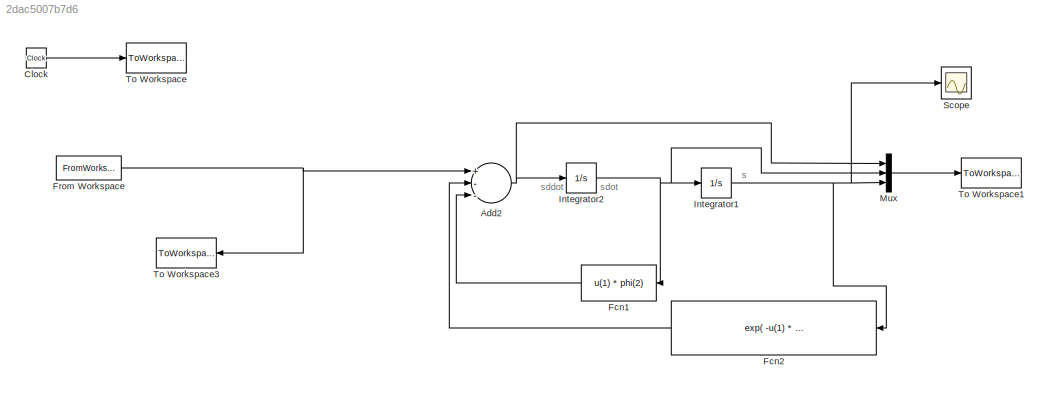
MODEL slx_2dac5007b7d6
KIND model
BLOCK [Sum] Add2
  InputSameDT = off
  Inputs = +--
  OutDataTypeStr = Inherit: Inherit via internal rule
  Ports = [3, 1]
  SaturateOnIntegerOverflow = off
BLOCK [Clock] Clock
BLOCK [Fcn] Fcn1
  Expr = u(1) * phi(2)
BLOCK [Fcn] Fcn2
  Expr = exp( -u(1) * phi(1))
BLOCK [FromWorkspace] From Workspace
  SampleTime = 0
  VariableName = input
  ZeroCross = on
BLOCK [Integrator] Integrator1
  Ports = [1, 1]
BLOCK [Integrator] Integrator2
  Ports = [1, 1]
BLOCK [Mux] Mux
  DisplayOption = bar
  Inputs = 3
  Ports = [3, 1]
BLOCK [Scope] Scope
  DataFormat = StructureWithTime
  Floating = off
  NumInputPorts = 1
  Ports = [1]
  SampleTime = 0
  ShowLegends = off
BLOCK [ToWorkspace] To Workspace
  MaxDataPoints = inf
  Ports = [1]
  SampleTime = -1
  VariableName = t
BLOCK [ToWorkspace] To Workspace1
  MaxDataPoints = inf
  Ports = [1]
  SampleTime = -1
  SaveFormat = Timeseries
  VariableName = state
BLOCK [ToWorkspace] To Workspace3
  MaxDataPoints = inf
  Ports = [1]
  SampleTime = -1
  SaveFormat = Timeseries
  VariableName = input_out
ANNOTATION (root): s
ANNOTATION (root): sddot
ANNOTATION (root): sdot
NET Add2:1 -> Integrator2:1, Mux:1
LINE Clock:1 -> To Workspace:1
LINE Fcn1:1 -> Add2:3
LINE Fcn2:1 -> Add2:2
NET From Workspace:1 -> Add2:1, To Workspace3:1
NET Integrator1:1 -> Fcn2:1, Mux:3, Scope:1
NET Integrator2:1 -> Fcn1:1, Integrator1:1, Mux:2
LINE Mux:1 -> To Workspace1:1
note: NET lines group one-source signal fan-out (src -> all destinations, sorted); 1:1 wires keep LINE
